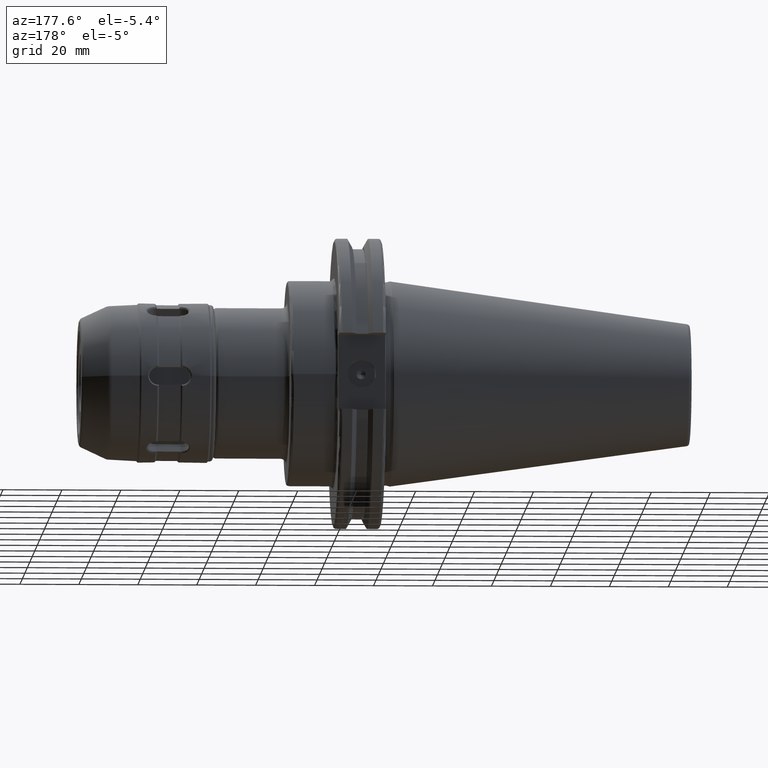
[diagram: clean part render]
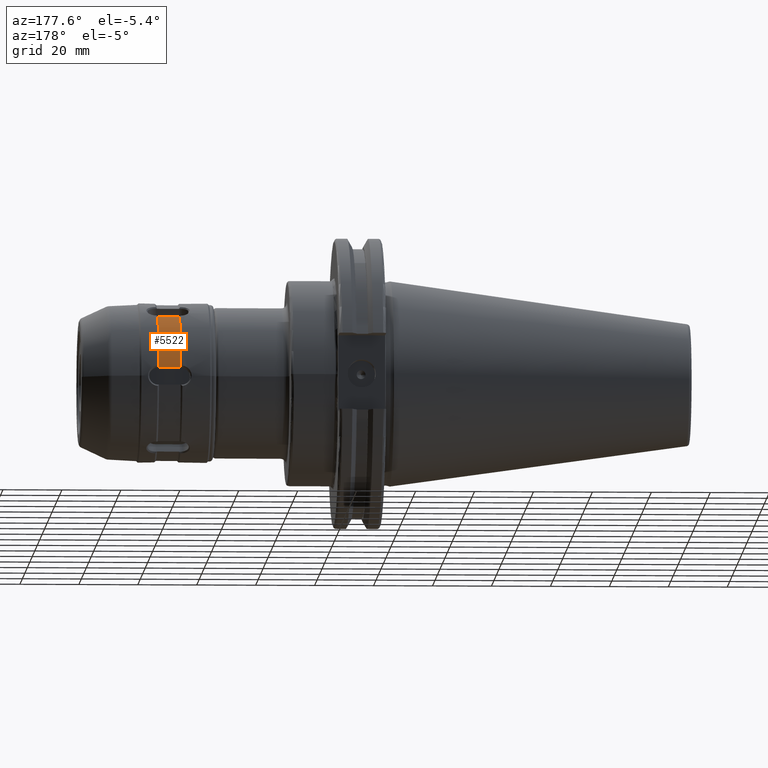
[diagram: same view with one face highlighted and labeled with its STEP entity id]
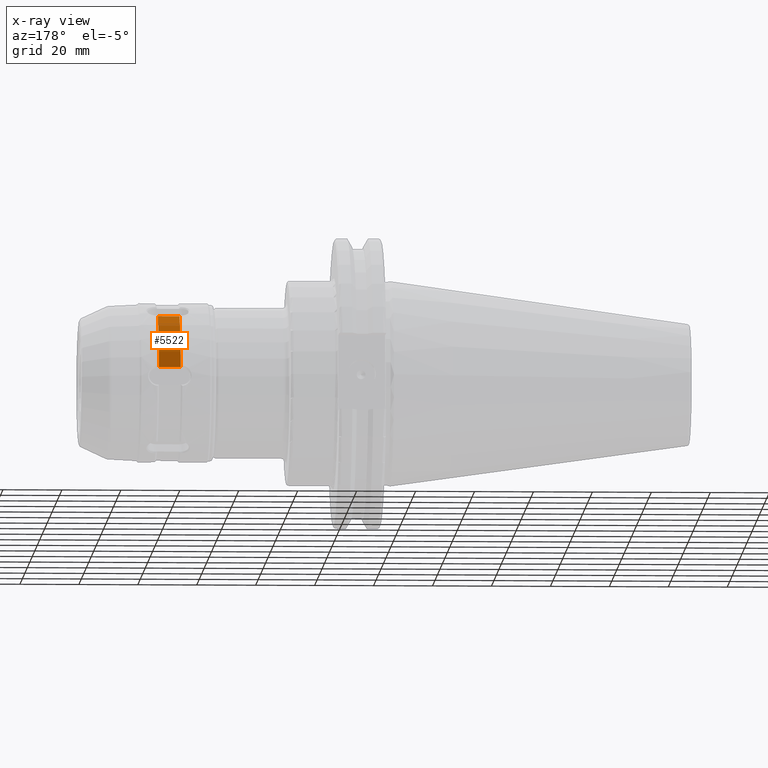
[diagram: x-ray of the same camera — body ghosted, the highlighted face saturated]
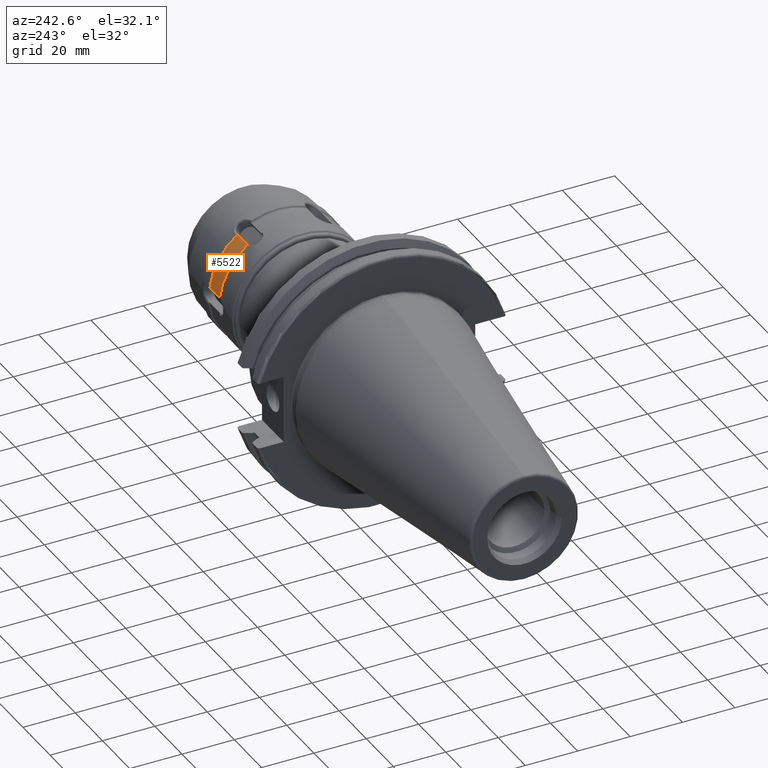
[diagram: same view with one face highlighted and labeled with its STEP entity id]
A machine part, auxiliary view. The second image highlights one B-rep face of the part: STEP entity #5522.
The next image is the same camera in x-ray: the body ghosted, the highlighted face saturated — about 0% of this face is hidden behind the body in this view.
A second angle (auxiliary view) of the same face is appended — the face is thin or edge-on in the first view.
In plain terms, the highlighted cylindrical surface (partial cylindrical patch) has radius 26.5 mm, axis along (1, 0, 0).
Its self-contained STEP definition (entity closure, byte-faithful):
#3277=DIRECTION('',(1.E0,0.E0,0.E0));
#3278=VECTOR('',#3277,7.4E0);
#3279=CARTESIAN_POINT('',(-3.35E1,1.576289675703E1,2.130213805765E1));
#3280=LINE('',#3279,#3278);
#3281=DIRECTION('',(1.E0,0.E0,0.E0));
#3282=VECTOR('',#3281,7.4E0);
#3283=CARTESIAN_POINT('',(-3.35E1,2.632964109136E1,3.E0));
#3284=LINE('',#3283,#3282);
#3609=CARTESIAN_POINT('',(-2.61E1,0.E0,0.E0));
#3610=DIRECTION('',(-1.E0,0.E0,0.E0));
#3611=DIRECTION('',(0.E0,5.948262927183E-1,8.038542663263E-1));
#3612=AXIS2_PLACEMENT_3D('',#3609,#3610,#3611);
#4062=CARTESIAN_POINT('',(-3.35E1,0.E0,0.E0));
#4063=DIRECTION('',(1.E0,0.E0,0.E0));
#4064=DIRECTION('',(0.E0,9.935713619382E-1,1.132075471698E-1));
#4065=AXIS2_PLACEMENT_3D('',#4062,#4063,#4064);
#4889=CARTESIAN_POINT('',(-3.35E1,2.632964109136E1,3.E0));
#4890=CARTESIAN_POINT('',(-2.61E1,2.632964109136E1,3.E0));
#4891=VERTEX_POINT('',#4889);
#4892=VERTEX_POINT('',#4890);
#4909=CARTESIAN_POINT('',(-3.35E1,1.576289675703E1,2.130213805765E1));
#4910=CARTESIAN_POINT('',(-2.61E1,1.576289675703E1,2.130213805765E1));
#4911=VERTEX_POINT('',#4909);
#4912=VERTEX_POINT('',#4910);
#5507=CARTESIAN_POINT('',(0.E0,0.E0,0.E0));
#5508=DIRECTION('',(1.E0,0.E0,0.E0));
#5509=DIRECTION('',(0.E0,-1.E0,0.E0));
#5510=AXIS2_PLACEMENT_3D('',#5507,#5508,#5509);
#5511=CYLINDRICAL_SURFACE('',#5510,2.65E1);
#5513=ORIENTED_EDGE('',*,*,#5512,.F.);
#5515=ORIENTED_EDGE('',*,*,#5514,.F.);
#5517=ORIENTED_EDGE('',*,*,#5516,.T.);
#5519=ORIENTED_EDGE('',*,*,#5518,.F.);
#5520=EDGE_LOOP('',(#5513,#5515,#5517,#5519));
#5521=FACE_OUTER_BOUND('',#5520,.F.);
#5522=ADVANCED_FACE('',(#5521),#5511,.T.);
#3613=CIRCLE('',#3612,2.65E1);
#4066=CIRCLE('',#4065,2.65E1);
#5512=EDGE_CURVE('',#4911,#4912,#3280,.T.);
#5514=EDGE_CURVE('',#4891,#4911,#4066,.T.);
#5516=EDGE_CURVE('',#4891,#4892,#3284,.T.);
#5518=EDGE_CURVE('',#4912,#4892,#3613,.T.);